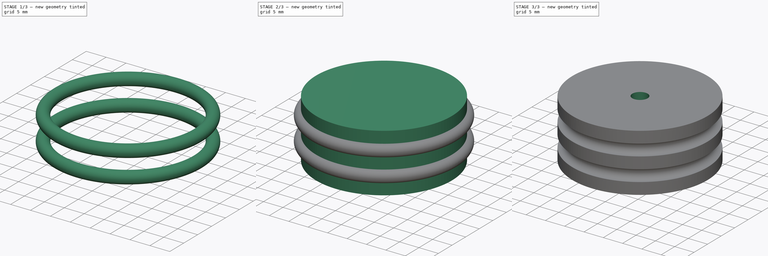
[diagram: build sequence overview — one tinted view per stage of 3, left to right]
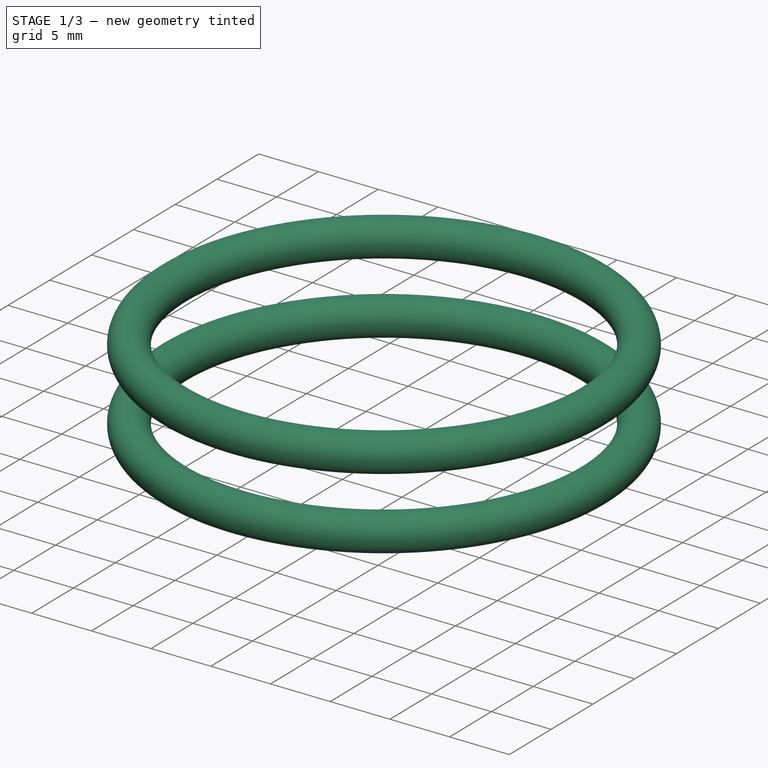
[diagram: stage 1 of 3 — iso view after this stage's code; geometry added in this stage tinted green]
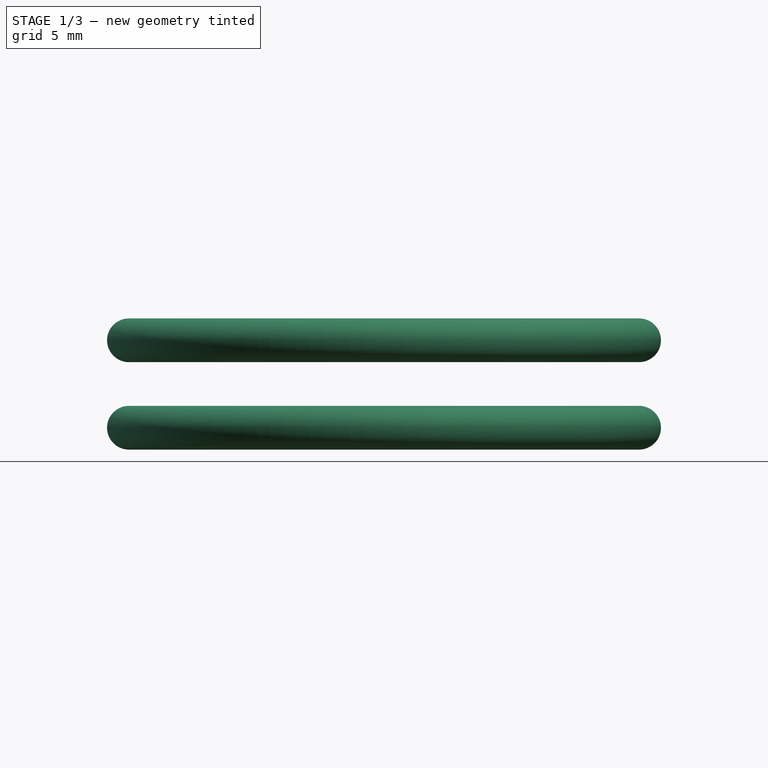
[diagram: stage 1 of 3 — front view after this stage's code; geometry added in this stage tinted green]
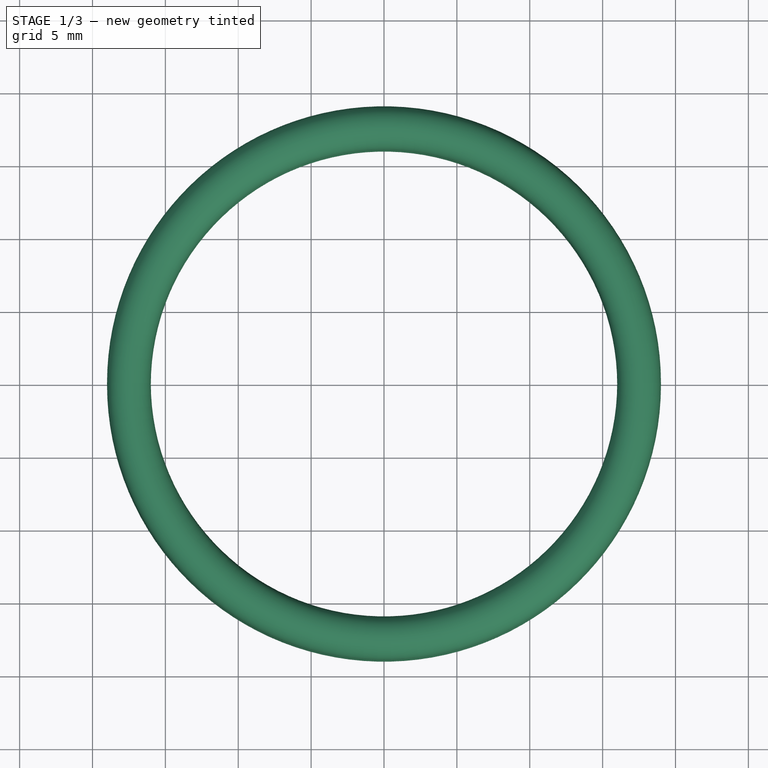
[diagram: stage 1 of 3 — top view after this stage's code; geometry added in this stage tinted green]
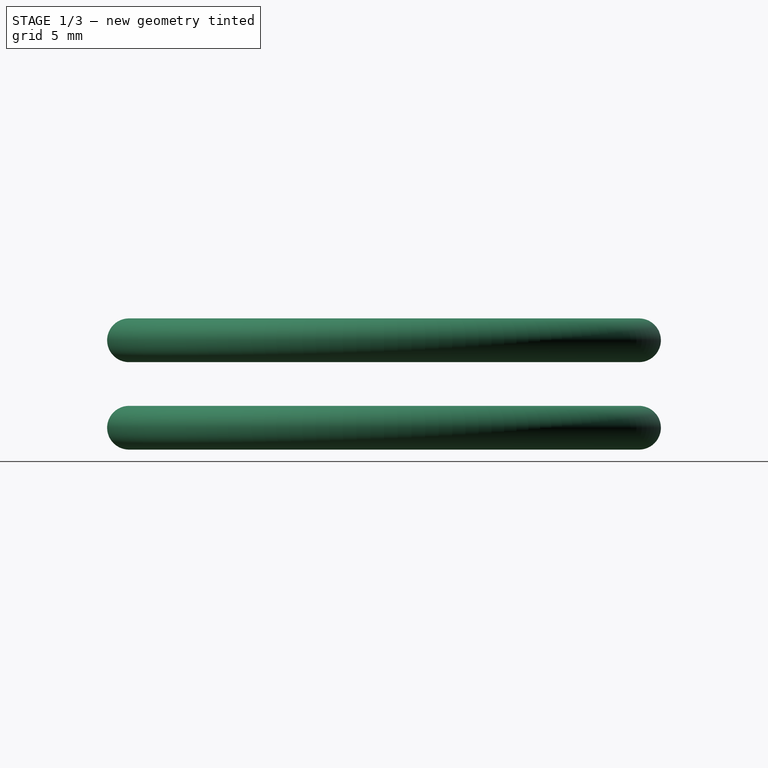
[diagram: stage 1 of 3 — right view after this stage's code; geometry added in this stage tinted green]
FCSTD DOCUMENT  (FreeCAD 0.14R3702 (Git))
Label: wheel-front
License: CC-BY 3.0
LicenseURL: http://creativecommons.org/licenses/by/3.0/
objects: Part::Torus×2, Part::Cylinder×1, Part::MultiFuse×1, Part::Cut×1, Sketcher::SketchObject×1, PartDesign::Pocket×1
note: 8 computed .brp shape members not serialized (recipe doc carries the construction recipe); baked Part::Feature solids carry a one-line shape summary decoded from their .brp

FEATURE [Part::Torus] Torus  label="top-o-ring"
  Angle1 = -180
  Angle2 = 180
  Angle3 = 360
  Placement = pos=(0,0,10.5) rot=(0,0,1;0rad)
  Radius1 = 17.5
  Radius2 = 1.5
FEATURE [Part::Torus] Torus001  label="bottom-o-ring"
  Angle1 = -180
  Angle2 = 180
  Angle3 = 360
  Placement = pos=(0,0,4.5) rot=(0,0,1;0rad)
  Radius1 = 17.5
  Radius2 = 1.5
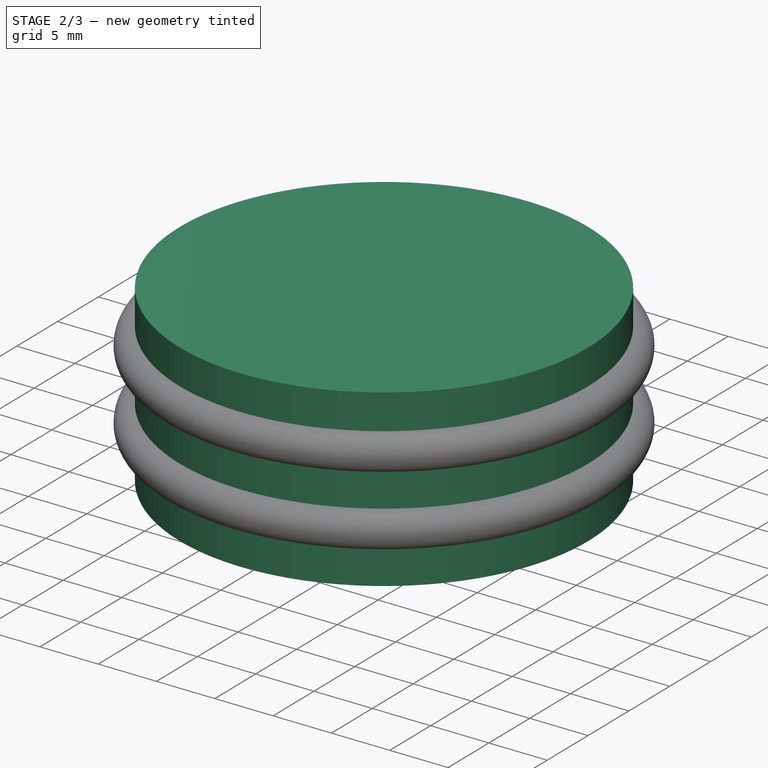
[diagram: stage 2 of 3 — iso view after this stage's code; geometry added in this stage tinted green]
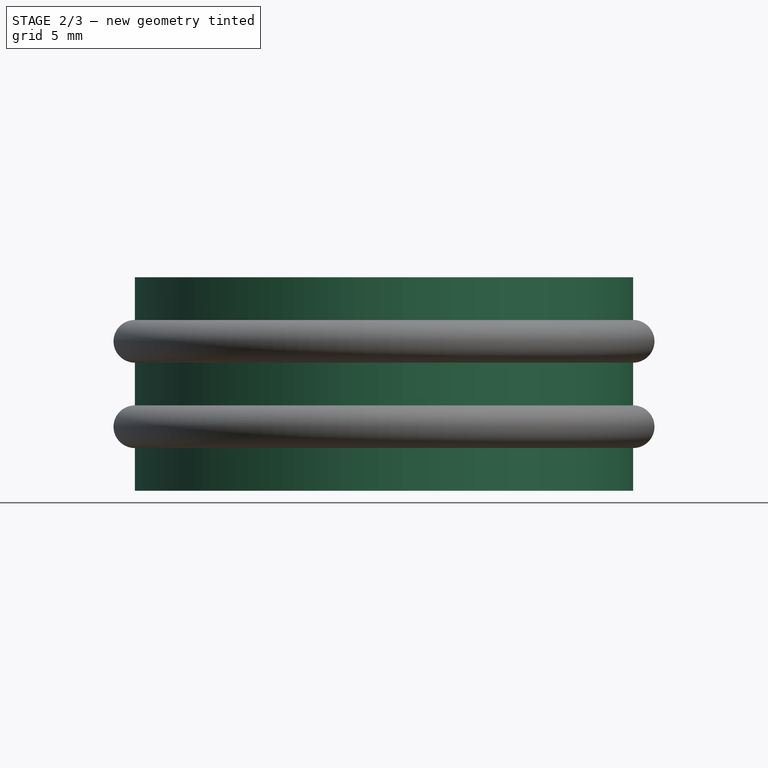
[diagram: stage 2 of 3 — front view after this stage's code; geometry added in this stage tinted green]
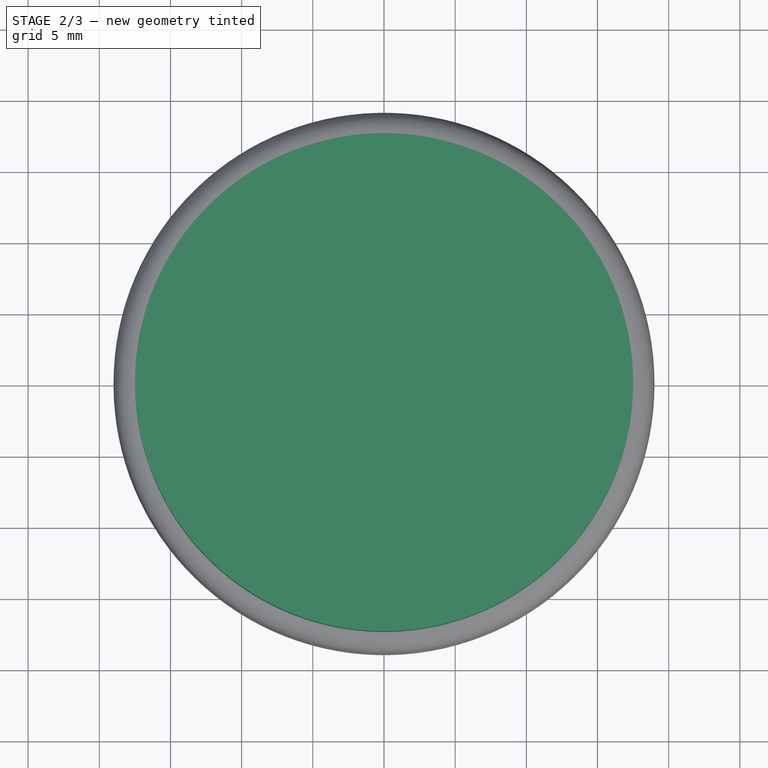
[diagram: stage 2 of 3 — top view after this stage's code; geometry added in this stage tinted green]
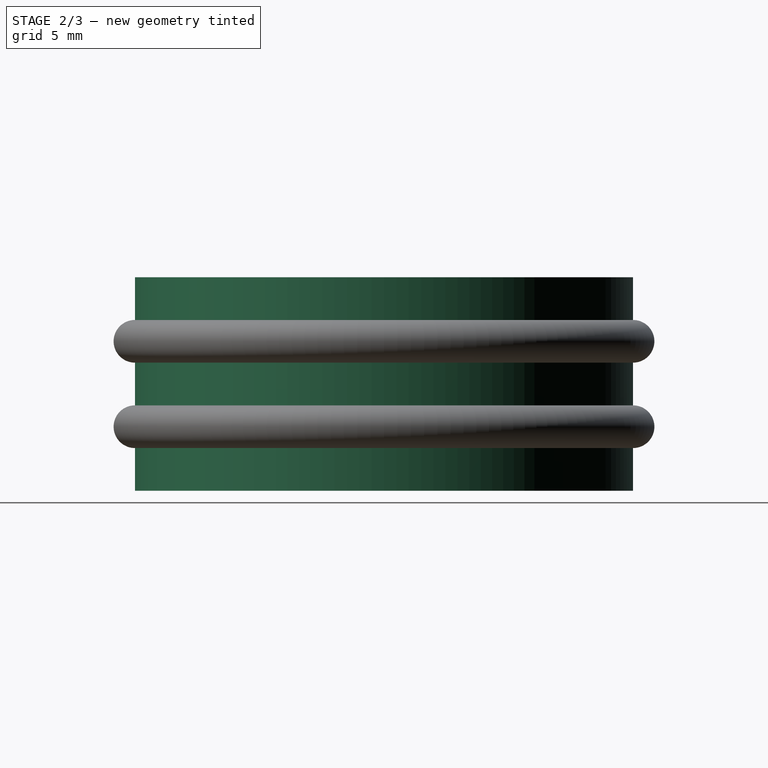
[diagram: stage 2 of 3 — right view after this stage's code; geometry added in this stage tinted green]
FEATURE [Part::Cylinder] Cylinder  label="wheel-base"
  Angle = 360
  Height = 15
  Radius = 17.5
FEATURE [Part::MultiFuse] Fusion  label="o-rings"
  Shapes = -> [Torus,Torus001]
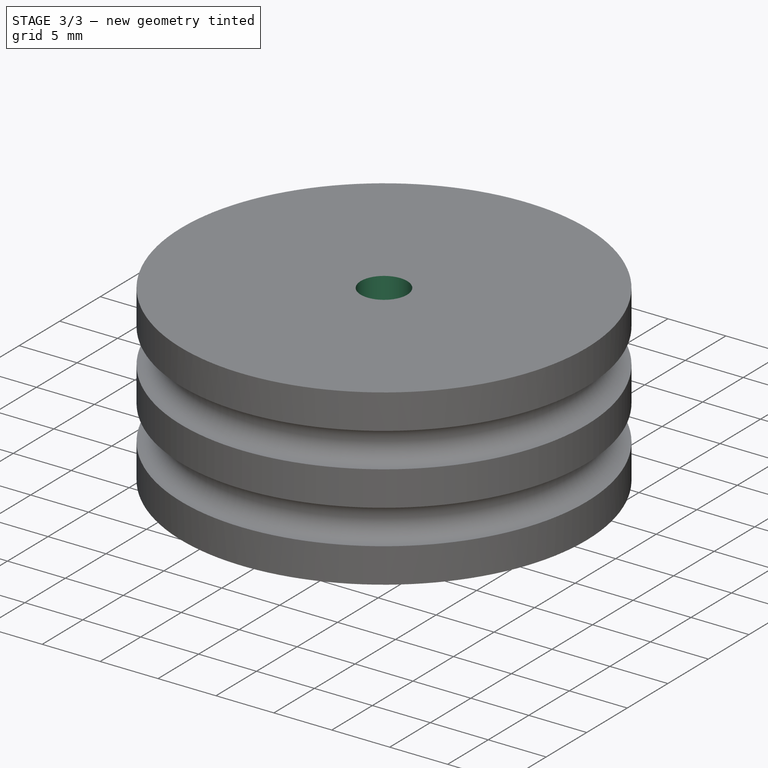
[diagram: stage 3 of 3 — iso view after this stage's code; geometry added in this stage tinted green]
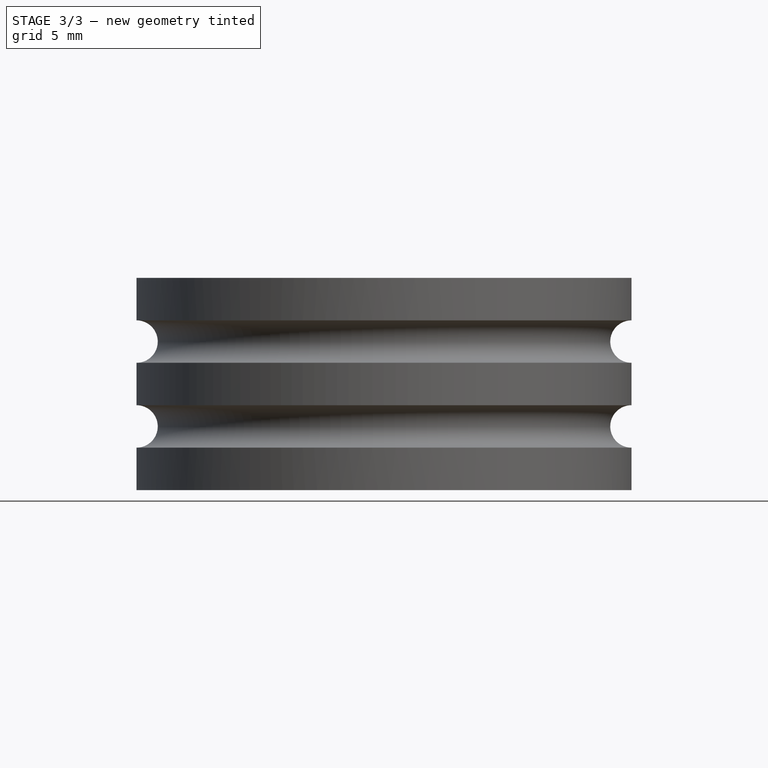
[diagram: stage 3 of 3 — front view after this stage's code; geometry added in this stage tinted green]
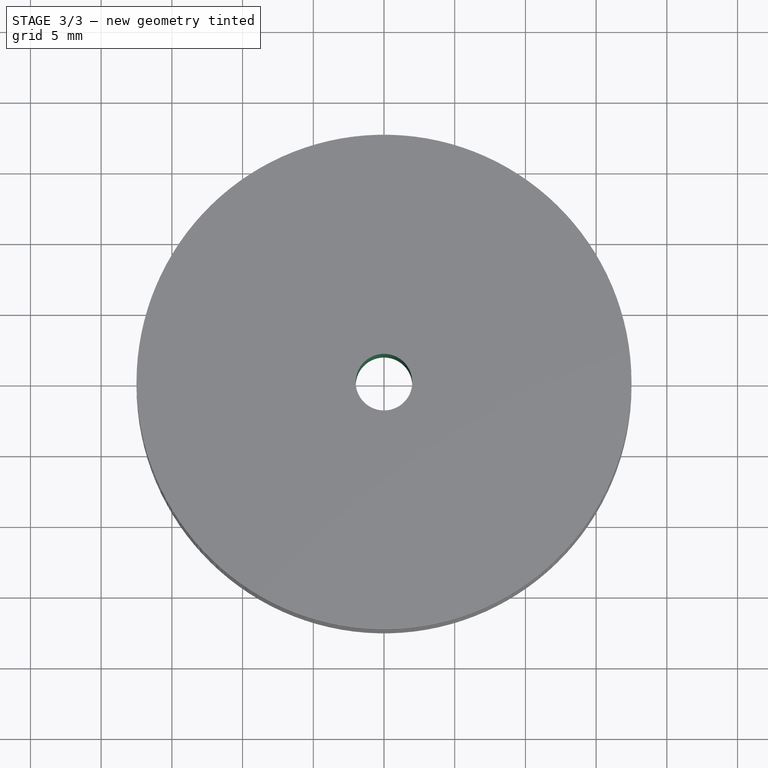
[diagram: stage 3 of 3 — top view after this stage's code; geometry added in this stage tinted green]
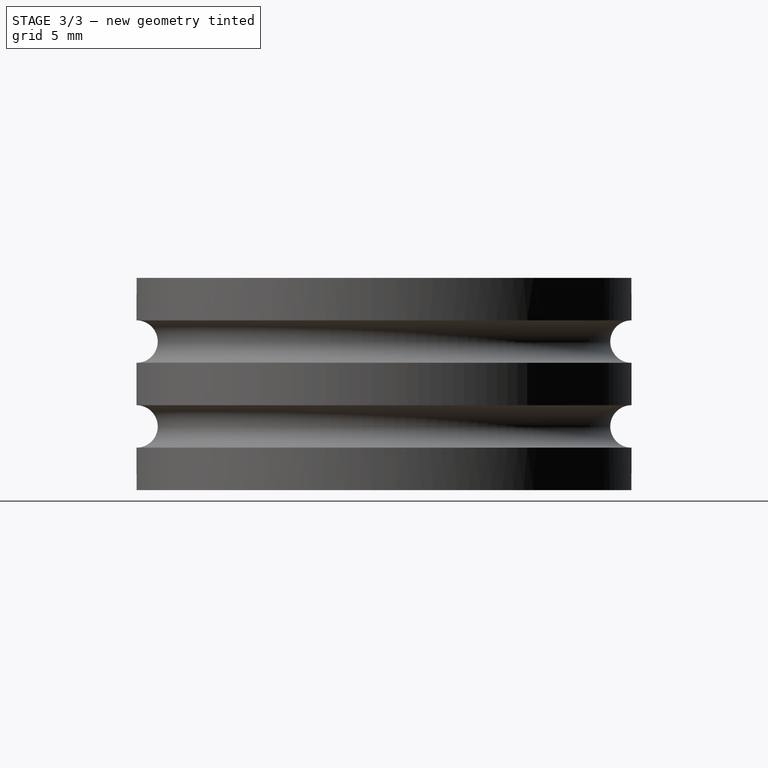
[diagram: stage 3 of 3 — right view after this stage's code; geometry added in this stage tinted green]
FEATURE [Part::Cut] Cut  label="wheel-front"
  Base = -> Cylinder
  Tool = -> Fusion
FEATURE [Sketcher::SketchObject] Sketch  label="drill-sketch"
  Placement = pos=(0,0,15) rot=(0,0,1;0rad)
  Support = -> Cut [Face3]
  sketch-geometry (1):
    g0: Circle CenterX=0 CenterY=0 CenterZ=0 NormalX=0 NormalY=0 NormalZ=1 Radius=2
  constraints (2):
    c: Coincident(g-1,g0)
    c: Radius(g0) = 2
FEATURE [PartDesign::Pocket] Pocket  label="drill-axle"
  Length = 5
  Sketch = -> Sketch
  Type = 1
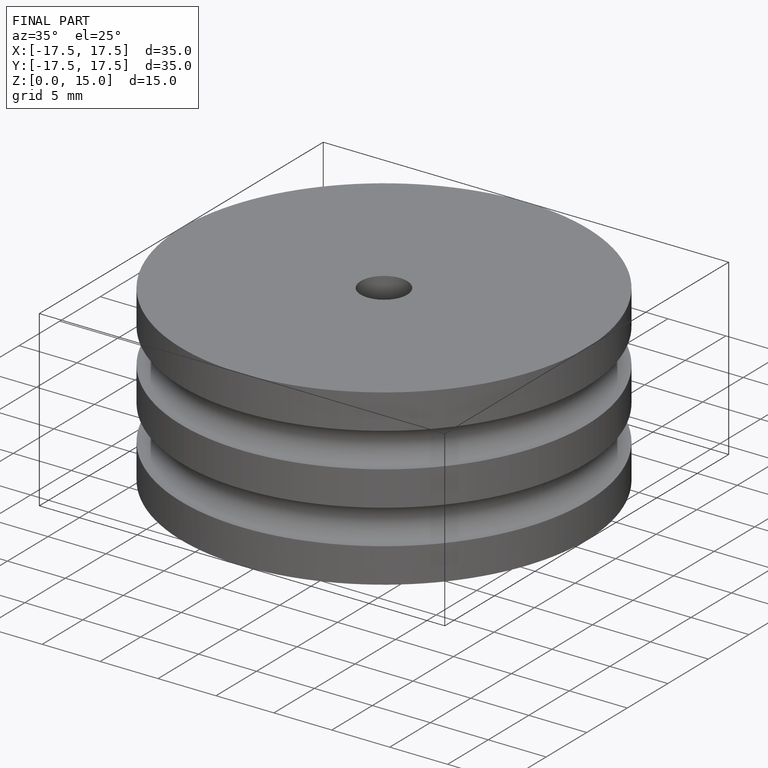
[diagram: finished part — iso view with bounding-box wireframe]
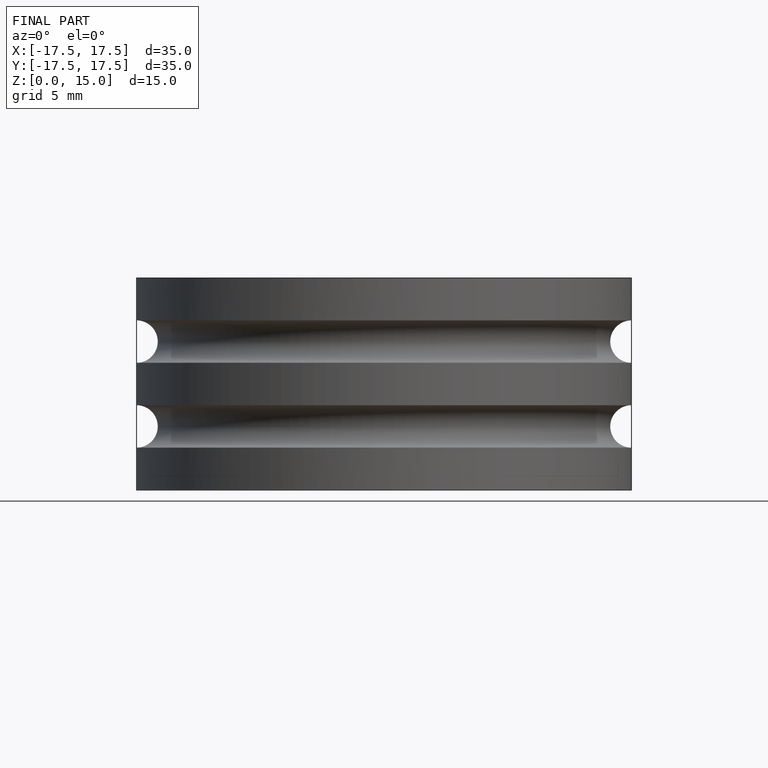
[diagram: finished part — front view with bounding-box wireframe]
